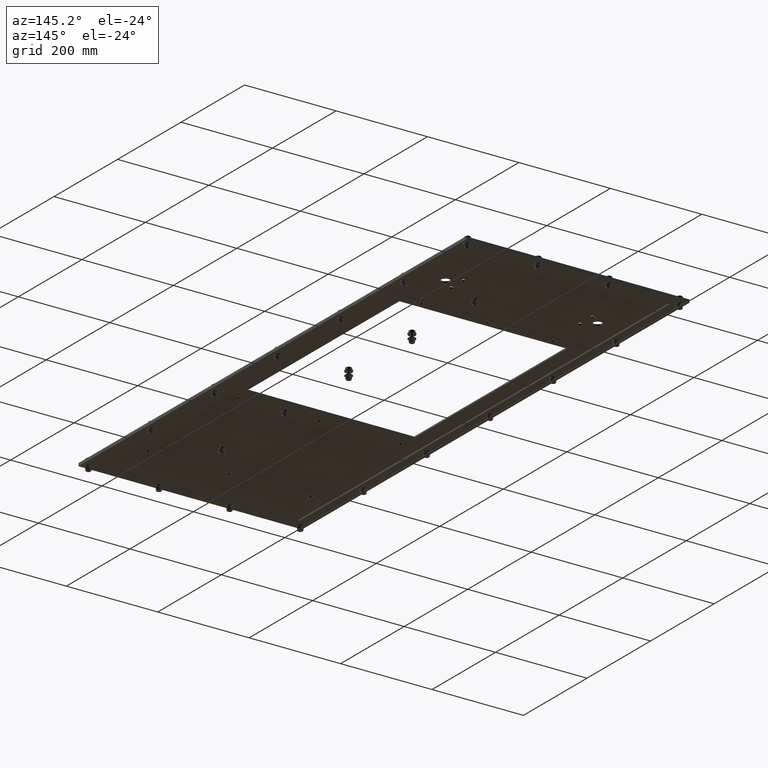
[diagram: clean part render]
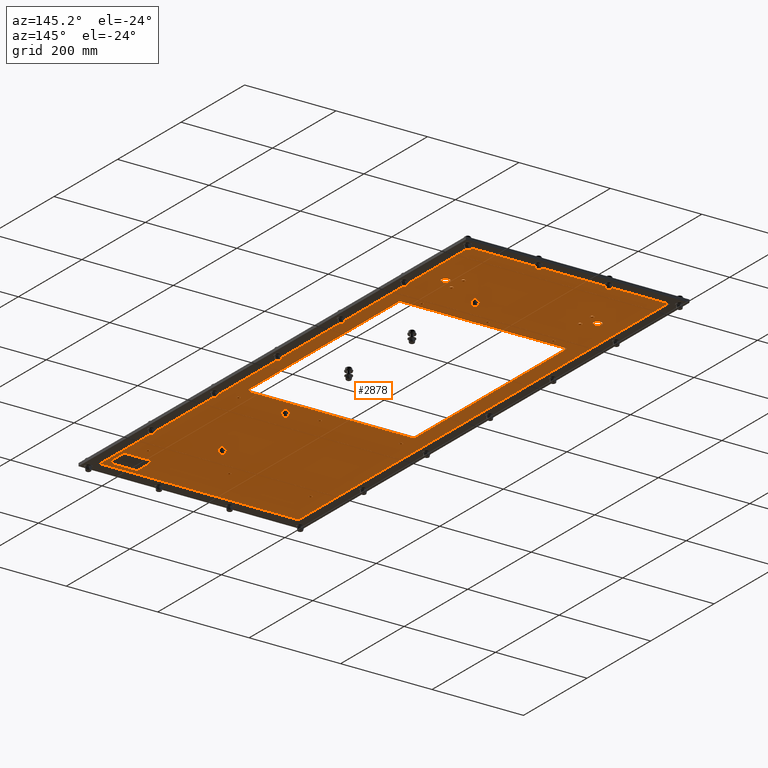
[diagram: same view with one face highlighted and labeled with its STEP entity id]
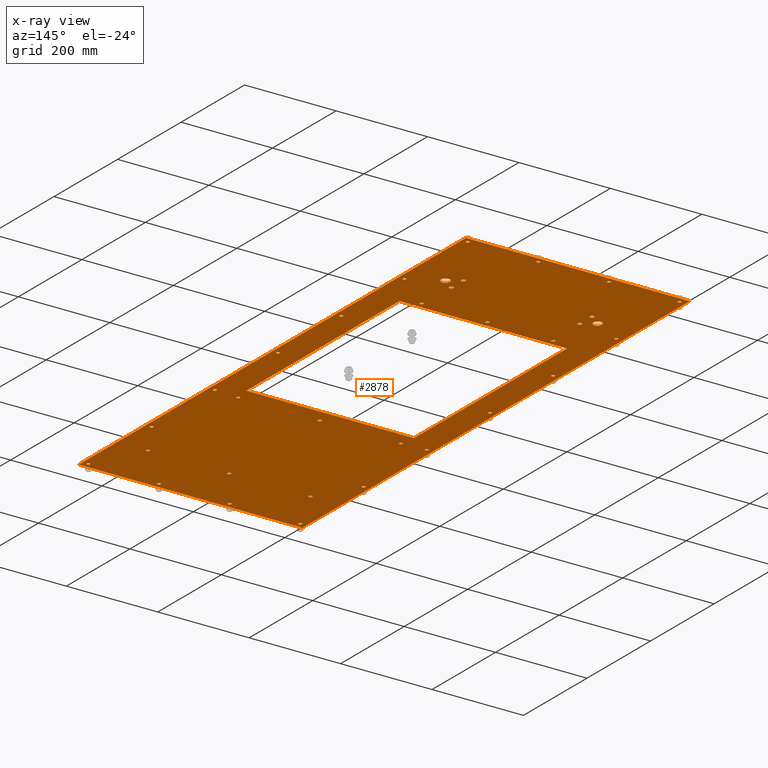
[diagram: x-ray of the same camera — body ghosted, the highlighted face saturated]
A machine part, auxiliary view. The second image highlights one B-rep face of the part: STEP entity #2878.
The next image is the same camera in x-ray: the body ghosted, the highlighted face saturated — about 0% of this face is hidden behind the body in this view.
In plain terms, the highlighted planar face has unit normal (0, 0, 1).
Its self-contained STEP definition (entity closure, byte-faithful):
#260=FACE_BOUND('',#881,.T.);
#261=FACE_BOUND('',#882,.T.);
#262=FACE_BOUND('',#883,.T.);
#263=FACE_BOUND('',#884,.T.);
#264=FACE_BOUND('',#885,.T.);
#265=FACE_BOUND('',#886,.T.);
#266=FACE_BOUND('',#887,.T.);
#267=FACE_BOUND('',#888,.T.);
#268=FACE_BOUND('',#889,.T.);
#269=FACE_BOUND('',#890,.T.);
#270=FACE_BOUND('',#891,.T.);
#271=FACE_BOUND('',#892,.T.);
#272=FACE_BOUND('',#893,.T.);
#273=FACE_BOUND('',#894,.T.);
#274=FACE_BOUND('',#895,.T.);
#275=FACE_BOUND('',#896,.T.);
#276=FACE_BOUND('',#897,.T.);
#277=FACE_BOUND('',#898,.T.);
#278=FACE_BOUND('',#899,.T.);
#279=FACE_BOUND('',#900,.T.);
#280=FACE_BOUND('',#901,.T.);
#281=FACE_BOUND('',#902,.T.);
#282=FACE_BOUND('',#903,.T.);
#283=FACE_BOUND('',#904,.T.);
#284=FACE_BOUND('',#905,.T.);
#285=FACE_BOUND('',#906,.T.);
#286=FACE_BOUND('',#907,.T.);
#287=FACE_BOUND('',#908,.T.);
#288=FACE_BOUND('',#909,.T.);
#289=FACE_BOUND('',#910,.T.);
#290=FACE_BOUND('',#911,.T.);
#291=FACE_BOUND('',#912,.T.);
#292=FACE_BOUND('',#913,.T.);
#293=FACE_BOUND('',#914,.T.);
#382=CIRCLE('',#3009,0.375);
#384=CIRCLE('',#3012,0.375);
#386=CIRCLE('',#3015,0.187499999999999);
#388=CIRCLE('',#3018,0.187499999999999);
#390=CIRCLE('',#3021,0.187499999999999);
#392=CIRCLE('',#3024,0.187499999999999);
#394=CIRCLE('',#3027,0.156250000000001);
#396=CIRCLE('',#3030,0.156250000000001);
#398=CIRCLE('',#3033,0.156250000000001);
#400=CIRCLE('',#3036,0.156249999999999);
#402=CIRCLE('',#3039,0.156249999999999);
#404=CIRCLE('',#3042,0.156249999999999);
#406=CIRCLE('',#3045,0.156249999999999);
#408=CIRCLE('',#3048,0.156249999999999);
#410=CIRCLE('',#3051,0.156249999999999);
#413=CIRCLE('',#3055,0.140625);
#415=CIRCLE('',#3058,0.140625);
#417=CIRCLE('',#3061,0.140625);
#419=CIRCLE('',#3064,0.140625);
#421=CIRCLE('',#3067,0.140625);
#423=CIRCLE('',#3070,0.140625);
#425=CIRCLE('',#3073,0.140625);
#427=CIRCLE('',#3076,0.140625);
#429=CIRCLE('',#3079,0.140625);
#431=CIRCLE('',#3082,0.140625);
#433=CIRCLE('',#3085,0.140625);
#435=CIRCLE('',#3088,0.140625);
#437=CIRCLE('',#3091,0.140625);
#439=CIRCLE('',#3094,0.140625);
#441=CIRCLE('',#3097,0.140625);
#443=CIRCLE('',#3100,0.140625);
#445=CIRCLE('',#3103,0.140625);
#447=CIRCLE('',#3106,0.140625);
#653=FACE_OUTER_BOUND('',#880,.T.);
#880=EDGE_LOOP('',(#2126,#2127,#2128,#2129));
#881=EDGE_LOOP('',(#2130,#2131,#2132,#2133));
#882=EDGE_LOOP('',(#2134));
#883=EDGE_LOOP('',(#2135));
#884=EDGE_LOOP('',(#2136));
#885=EDGE_LOOP('',(#2137));
#886=EDGE_LOOP('',(#2138));
#887=EDGE_LOOP('',(#2139));
#888=EDGE_LOOP('',(#2140));
#889=EDGE_LOOP('',(#2141));
#890=EDGE_LOOP('',(#2142));
#891=EDGE_LOOP('',(#2143));
#892=EDGE_LOOP('',(#2144));
#893=EDGE_LOOP('',(#2145));
#894=EDGE_LOOP('',(#2146));
#895=EDGE_LOOP('',(#2147));
#896=EDGE_LOOP('',(#2148));
#897=EDGE_LOOP('',(#2149));
#898=EDGE_LOOP('',(#2150));
#899=EDGE_LOOP('',(#2151));
#900=EDGE_LOOP('',(#2152));
#901=EDGE_LOOP('',(#2153));
#902=EDGE_LOOP('',(#2154));
#903=EDGE_LOOP('',(#2155));
#904=EDGE_LOOP('',(#2156));
#905=EDGE_LOOP('',(#2157));
#906=EDGE_LOOP('',(#2158));
#907=EDGE_LOOP('',(#2159));
#908=EDGE_LOOP('',(#2160));
#909=EDGE_LOOP('',(#2161));
#910=EDGE_LOOP('',(#2162));
#911=EDGE_LOOP('',(#2163));
#912=EDGE_LOOP('',(#2164));
#913=EDGE_LOOP('',(#2165));
#914=EDGE_LOOP('',(#2166));
#1120=LINE('',#4219,#1261);
#1124=LINE('',#4227,#1265);
#1127=LINE('',#4233,#1268);
#1130=LINE('',#4238,#1271);
#1134=LINE('',#4412,#1275);
#1138=LINE('',#4419,#1279);
#1141=LINE('',#4425,#1282);
#1143=LINE('',#4428,#1284);
#1261=VECTOR('',#3364,18.96);
#1265=VECTOR('',#3370,14.44);
#1268=VECTOR('',#3375,18.96);
#1271=VECTOR('',#3380,14.44);
#1275=VECTOR('',#3584,48.);
#1279=VECTOR('',#3590,19.25);
#1282=VECTOR('',#3595,48.);
#1284=VECTOR('',#3599,19.25);
#1402=VERTEX_POINT('',#4217);
#1403=VERTEX_POINT('',#4218);
#1406=VERTEX_POINT('',#4226);
#1408=VERTEX_POINT('',#4232);
#1410=VERTEX_POINT('',#4241);
#1412=VERTEX_POINT('',#4246);
#1414=VERTEX_POINT('',#4251);
#1416=VERTEX_POINT('',#4256);
#1418=VERTEX_POINT('',#4261);
#1420=VERTEX_POINT('',#4266);
#1422=VERTEX_POINT('',#4271);
#1424=VERTEX_POINT('',#4276);
#1426=VERTEX_POINT('',#4281);
#1428=VERTEX_POINT('',#4286);
#1430=VERTEX_POINT('',#4291);
#1432=VERTEX_POINT('',#4296);
#1434=VERTEX_POINT('',#4301);
#1436=VERTEX_POINT('',#4306);
#1438=VERTEX_POINT('',#4311);
#1441=VERTEX_POINT('',#4318);
#1443=VERTEX_POINT('',#4323);
#1445=VERTEX_POINT('',#4328);
#1447=VERTEX_POINT('',#4333);
#1449=VERTEX_POINT('',#4338);
#1451=VERTEX_POINT('',#4343);
#1453=VERTEX_POINT('',#4348);
#1455=VERTEX_POINT('',#4353);
#1457=VERTEX_POINT('',#4358);
#1459=VERTEX_POINT('',#4363);
#1461=VERTEX_POINT('',#4368);
#1463=VERTEX_POINT('',#4373);
#1465=VERTEX_POINT('',#4378);
#1467=VERTEX_POINT('',#4383);
#1469=VERTEX_POINT('',#4388);
#1471=VERTEX_POINT('',#4393);
#1473=VERTEX_POINT('',#4398);
#1475=VERTEX_POINT('',#4403);
#1478=VERTEX_POINT('',#4409);
#1479=VERTEX_POINT('',#4411);
#1481=VERTEX_POINT('',#4417);
#1483=VERTEX_POINT('',#4423);
#1660=EDGE_CURVE('',#1402,#1403,#1120,.T.);
#1664=EDGE_CURVE('',#1403,#1406,#1124,.T.);
#1667=EDGE_CURVE('',#1406,#1408,#1127,.T.);
#1670=EDGE_CURVE('',#1408,#1402,#1130,.T.);
#1672=EDGE_CURVE('',#1410,#1410,#382,.T.);
#1674=EDGE_CURVE('',#1412,#1412,#384,.T.);
#1676=EDGE_CURVE('',#1414,#1414,#386,.T.);
#1678=EDGE_CURVE('',#1416,#1416,#388,.T.);
#1680=EDGE_CURVE('',#1418,#1418,#390,.T.);
#1682=EDGE_CURVE('',#1420,#1420,#392,.T.);
#1684=EDGE_CURVE('',#1422,#1422,#394,.T.);
#1686=EDGE_CURVE('',#1424,#1424,#396,.T.);
#1688=EDGE_CURVE('',#1426,#1426,#398,.T.);
#1690=EDGE_CURVE('',#1428,#1428,#400,.T.);
#1692=EDGE_CURVE('',#1430,#1430,#402,.T.);
#1694=EDGE_CURVE('',#1432,#1432,#404,.T.);
#1696=EDGE_CURVE('',#1434,#1434,#406,.T.);
#1698=EDGE_CURVE('',#1436,#1436,#408,.T.);
#1700=EDGE_CURVE('',#1438,#1438,#410,.T.);
#1703=EDGE_CURVE('',#1441,#1441,#413,.T.);
#1705=EDGE_CURVE('',#1443,#1443,#415,.T.);
#1707=EDGE_CURVE('',#1445,#1445,#417,.T.);
#1709=EDGE_CURVE('',#1447,#1447,#419,.T.);
#1711=EDGE_CURVE('',#1449,#1449,#421,.T.);
#1713=EDGE_CURVE('',#1451,#1451,#423,.T.);
#1715=EDGE_CURVE('',#1453,#1453,#425,.T.);
#1717=EDGE_CURVE('',#1455,#1455,#427,.T.);
#1719=EDGE_CURVE('',#1457,#1457,#429,.T.);
#1721=EDGE_CURVE('',#1459,#1459,#431,.T.);
#1723=EDGE_CURVE('',#1461,#1461,#433,.T.);
#1725=EDGE_CURVE('',#1463,#1463,#435,.T.);
#1727=EDGE_CURVE('',#1465,#1465,#437,.T.);
#1729=EDGE_CURVE('',#1467,#1467,#439,.T.);
#1731=EDGE_CURVE('',#1469,#1469,#441,.T.);
#1733=EDGE_CURVE('',#1471,#1471,#443,.T.);
#1735=EDGE_CURVE('',#1473,#1473,#445,.T.);
#1737=EDGE_CURVE('',#1475,#1475,#447,.T.);
#1740=EDGE_CURVE('',#1479,#1478,#1134,.T.);
#1744=EDGE_CURVE('',#1478,#1481,#1138,.T.);
#1747=EDGE_CURVE('',#1481,#1483,#1141,.T.);
#1749=EDGE_CURVE('',#1483,#1479,#1143,.T.);
#2126=ORIENTED_EDGE('',*,*,#1749,.T.);
#2127=ORIENTED_EDGE('',*,*,#1740,.T.);
#2128=ORIENTED_EDGE('',*,*,#1744,.T.);
#2129=ORIENTED_EDGE('',*,*,#1747,.T.);
#2130=ORIENTED_EDGE('',*,*,#1660,.T.);
#2131=ORIENTED_EDGE('',*,*,#1664,.T.);
#2132=ORIENTED_EDGE('',*,*,#1667,.T.);
#2133=ORIENTED_EDGE('',*,*,#1670,.T.);
#2134=ORIENTED_EDGE('',*,*,#1672,.T.);
#2135=ORIENTED_EDGE('',*,*,#1674,.T.);
#2136=ORIENTED_EDGE('',*,*,#1676,.T.);
#2137=ORIENTED_EDGE('',*,*,#1678,.T.);
#2138=ORIENTED_EDGE('',*,*,#1680,.T.);
#2139=ORIENTED_EDGE('',*,*,#1682,.T.);
#2140=ORIENTED_EDGE('',*,*,#1684,.T.);
#2141=ORIENTED_EDGE('',*,*,#1686,.T.);
#2142=ORIENTED_EDGE('',*,*,#1688,.T.);
#2143=ORIENTED_EDGE('',*,*,#1690,.T.);
#2144=ORIENTED_EDGE('',*,*,#1692,.T.);
#2145=ORIENTED_EDGE('',*,*,#1694,.T.);
#2146=ORIENTED_EDGE('',*,*,#1696,.T.);
#2147=ORIENTED_EDGE('',*,*,#1698,.T.);
#2148=ORIENTED_EDGE('',*,*,#1700,.T.);
#2149=ORIENTED_EDGE('',*,*,#1703,.T.);
#2150=ORIENTED_EDGE('',*,*,#1705,.T.);
#2151=ORIENTED_EDGE('',*,*,#1707,.T.);
#2152=ORIENTED_EDGE('',*,*,#1709,.T.);
#2153=ORIENTED_EDGE('',*,*,#1711,.T.);
#2154=ORIENTED_EDGE('',*,*,#1713,.T.);
#2155=ORIENTED_EDGE('',*,*,#1715,.T.);
#2156=ORIENTED_EDGE('',*,*,#1717,.T.);
#2157=ORIENTED_EDGE('',*,*,#1719,.T.);
#2158=ORIENTED_EDGE('',*,*,#1721,.T.);
#2159=ORIENTED_EDGE('',*,*,#1723,.T.);
#2160=ORIENTED_EDGE('',*,*,#1725,.T.);
#2161=ORIENTED_EDGE('',*,*,#1727,.T.);
#2162=ORIENTED_EDGE('',*,*,#1729,.T.);
#2163=ORIENTED_EDGE('',*,*,#1731,.T.);
#2164=ORIENTED_EDGE('',*,*,#1733,.T.);
#2165=ORIENTED_EDGE('',*,*,#1735,.T.);
#2166=ORIENTED_EDGE('',*,*,#1737,.T.);
#2650=PLANE('',#3112);
#2878=ADVANCED_FACE('',(#653,#260,#261,#262,#263,#264,#265,#266,#267,#268,
#269,#270,#271,#272,#273,#274,#275,#276,#277,#278,#279,#280,#281,#282,#283,
#284,#285,#286,#287,#288,#289,#290,#291,#292,#293),#2650,.F.);
#3009=AXIS2_PLACEMENT_3D('',#4242,#3384,#3385);
#3012=AXIS2_PLACEMENT_3D('',#4247,#3390,#3391);
#3015=AXIS2_PLACEMENT_3D('',#4252,#3396,#3397);
#3018=AXIS2_PLACEMENT_3D('',#4257,#3402,#3403);
#3021=AXIS2_PLACEMENT_3D('',#4262,#3408,#3409);
#3024=AXIS2_PLACEMENT_3D('',#4267,#3414,#3415);
#3027=AXIS2_PLACEMENT_3D('',#4272,#3420,#3421);
#3030=AXIS2_PLACEMENT_3D('',#4277,#3426,#3427);
#3033=AXIS2_PLACEMENT_3D('',#4282,#3432,#3433);
#3036=AXIS2_PLACEMENT_3D('',#4287,#3438,#3439);
#3039=AXIS2_PLACEMENT_3D('',#4292,#3444,#3445);
#3042=AXIS2_PLACEMENT_3D('',#4297,#3450,#3451);
#3045=AXIS2_PLACEMENT_3D('',#4302,#3456,#3457);
#3048=AXIS2_PLACEMENT_3D('',#4307,#3462,#3463);
#3051=AXIS2_PLACEMENT_3D('',#4312,#3468,#3469);
#3055=AXIS2_PLACEMENT_3D('',#4319,#3476,#3477);
#3058=AXIS2_PLACEMENT_3D('',#4324,#3482,#3483);
#3061=AXIS2_PLACEMENT_3D('',#4329,#3488,#3489);
#3064=AXIS2_PLACEMENT_3D('',#4334,#3494,#3495);
#3067=AXIS2_PLACEMENT_3D('',#4339,#3500,#3501);
#3070=AXIS2_PLACEMENT_3D('',#4344,#3506,#3507);
#3073=AXIS2_PLACEMENT_3D('',#4349,#3512,#3513);
#3076=AXIS2_PLACEMENT_3D('',#4354,#3518,#3519);
#3079=AXIS2_PLACEMENT_3D('',#4359,#3524,#3525);
#3082=AXIS2_PLACEMENT_3D('',#4364,#3530,#3531);
#3085=AXIS2_PLACEMENT_3D('',#4369,#3536,#3537);
#3088=AXIS2_PLACEMENT_3D('',#4374,#3542,#3543);
#3091=AXIS2_PLACEMENT_3D('',#4379,#3548,#3549);
#3094=AXIS2_PLACEMENT_3D('',#4384,#3554,#3555);
#3097=AXIS2_PLACEMENT_3D('',#4389,#3560,#3561);
#3100=AXIS2_PLACEMENT_3D('',#4394,#3566,#3567);
#3103=AXIS2_PLACEMENT_3D('',#4399,#3572,#3573);
#3106=AXIS2_PLACEMENT_3D('',#4404,#3578,#3579);
#3112=AXIS2_PLACEMENT_3D('',#4430,#3602,#3603);
#3364=DIRECTION('',(1.47542845227437E-16,-1.,0.));
#3370=DIRECTION('',(1.,0.,0.));
#3375=DIRECTION('',(-7.37714226137185E-17,1.,0.));
#3380=DIRECTION('',(-1.,0.,0.));
#3384=DIRECTION('center_axis',(0.,0.,1.));
#3385=DIRECTION('ref_axis',(-1.,0.,0.));
#3390=DIRECTION('center_axis',(0.,0.,1.));
#3391=DIRECTION('ref_axis',(-1.,0.,0.));
#3396=DIRECTION('center_axis',(0.,0.,1.));
#3397=DIRECTION('ref_axis',(-1.,0.,0.));
#3402=DIRECTION('center_axis',(0.,0.,1.));
#3403=DIRECTION('ref_axis',(-1.,0.,0.));
#3408=DIRECTION('center_axis',(0.,0.,1.));
#3409=DIRECTION('ref_axis',(-1.,0.,0.));
#3414=DIRECTION('center_axis',(0.,0.,1.));
#3415=DIRECTION('ref_axis',(-1.,0.,0.));
#3420=DIRECTION('center_axis',(0.,0.,1.));
#3421=DIRECTION('ref_axis',(-1.,0.,0.));
#3426=DIRECTION('center_axis',(0.,0.,1.));
#3427=DIRECTION('ref_axis',(-1.,0.,0.));
#3432=DIRECTION('center_axis',(0.,0.,1.));
#3433=DIRECTION('ref_axis',(-1.,0.,0.));
#3438=DIRECTION('center_axis',(0.,0.,1.));
#3439=DIRECTION('ref_axis',(-1.,0.,0.));
#3444=DIRECTION('center_axis',(0.,0.,1.));
#3445=DIRECTION('ref_axis',(-1.,0.,0.));
#3450=DIRECTION('center_axis',(0.,0.,1.));
#3451=DIRECTION('ref_axis',(-1.,0.,0.));
#3456=DIRECTION('center_axis',(0.,0.,1.));
#3457=DIRECTION('ref_axis',(-1.,0.,0.));
#3462=DIRECTION('center_axis',(0.,0.,1.));
#3463=DIRECTION('ref_axis',(-1.,0.,0.));
#3468=DIRECTION('center_axis',(0.,0.,1.));
#3469=DIRECTION('ref_axis',(-1.,0.,0.));
#3476=DIRECTION('center_axis',(0.,0.,1.));
#3477=DIRECTION('ref_axis',(1.,0.,0.));
#3482=DIRECTION('center_axis',(0.,0.,1.));
#3483=DIRECTION('ref_axis',(1.,0.,0.));
#3488=DIRECTION('center_axis',(0.,0.,1.));
#3489=DIRECTION('ref_axis',(1.,0.,0.));
#3494=DIRECTION('center_axis',(0.,0.,1.));
#3495=DIRECTION('ref_axis',(1.,0.,0.));
#3500=DIRECTION('center_axis',(0.,0.,1.));
#3501=DIRECTION('ref_axis',(1.,0.,0.));
#3506=DIRECTION('center_axis',(0.,0.,1.));
#3507=DIRECTION('ref_axis',(1.,0.,0.));
#3512=DIRECTION('center_axis',(0.,0.,1.));
#3513=DIRECTION('ref_axis',(1.,0.,0.));
#3518=DIRECTION('center_axis',(0.,0.,1.));
#3519=DIRECTION('ref_axis',(1.,0.,0.));
#3524=DIRECTION('center_axis',(0.,0.,1.));
#3525=DIRECTION('ref_axis',(1.,0.,0.));
#3530=DIRECTION('center_axis',(0.,0.,1.));
#3531=DIRECTION('ref_axis',(1.,0.,0.));
#3536=DIRECTION('center_axis',(0.,0.,1.));
#3537=DIRECTION('ref_axis',(1.,0.,0.));
#3542=DIRECTION('center_axis',(0.,0.,1.));
#3543=DIRECTION('ref_axis',(1.,0.,0.));
#3548=DIRECTION('center_axis',(0.,0.,1.));
#3549=DIRECTION('ref_axis',(1.,0.,0.));
#3554=DIRECTION('center_axis',(0.,0.,1.));
#3555=DIRECTION('ref_axis',(1.,0.,0.));
#3560=DIRECTION('center_axis',(0.,0.,1.));
#3561=DIRECTION('ref_axis',(1.,0.,0.));
#3566=DIRECTION('center_axis',(0.,0.,1.));
#3567=DIRECTION('ref_axis',(1.,0.,0.));
#3572=DIRECTION('center_axis',(0.,0.,1.));
#3573=DIRECTION('ref_axis',(1.,0.,0.));
#3578=DIRECTION('center_axis',(0.,0.,1.));
#3579=DIRECTION('ref_axis',(1.,0.,0.));
#3584=DIRECTION('',(0.,-1.,0.));
#3590=DIRECTION('',(-1.,-1.4532012184479E-16,0.));
#3595=DIRECTION('',(-1.74838271594513E-16,1.,0.));
#3599=DIRECTION('',(1.,0.,0.));
#3602=DIRECTION('center_axis',(0.,0.,1.));
#3603=DIRECTION('ref_axis',(1.,0.,0.));
#4217=CARTESIAN_POINT('',(-7.235,12.275,-2.18547839493141E-17));
#4218=CARTESIAN_POINT('',(-7.235,-6.68499999999999,-2.18547839493141E-17));
#4219=CARTESIAN_POINT('',(-7.235,6.1375,0.));
#4226=CARTESIAN_POINT('',(7.205,-6.68499999999999,-2.18547839493141E-17));
#4227=CARTESIAN_POINT('',(-3.6175,-6.68499999999999,0.));
#4232=CARTESIAN_POINT('',(7.20499999999999,12.275,-2.18547839493141E-17));
#4233=CARTESIAN_POINT('',(7.205,-3.3425,0.));
#4238=CARTESIAN_POINT('',(3.6025,12.275,0.));
#4241=CARTESIAN_POINT('',(6.94000000000004,17.0650000000004,0.));
#4242=CARTESIAN_POINT('Origin',(6.56500000000004,17.0650000000004,0.));
#4246=CARTESIAN_POINT('',(-6.16,17.065,0.));
#4247=CARTESIAN_POINT('Origin',(-6.53500000000001,17.065,0.));
#4251=CARTESIAN_POINT('',(5.73250000000016,16.3149999999999,0.));
#4252=CARTESIAN_POINT('Origin',(5.54500000000016,16.3149999999999,0.));
#4256=CARTESIAN_POINT('',(5.73250000000001,17.8150000000002,0.));
#4257=CARTESIAN_POINT('Origin',(5.54500000000001,17.8150000000002,0.));
#4261=CARTESIAN_POINT('',(-5.34749999999984,16.3149999999999,0.));
#4262=CARTESIAN_POINT('Origin',(-5.53499999999983,16.3149999999999,0.));
#4266=CARTESIAN_POINT('',(-5.34750000000001,17.815,0.));
#4267=CARTESIAN_POINT('Origin',(-5.53500000000001,17.815,0.));
#4271=CARTESIAN_POINT('',(5.84125,12.835,0.));
#4272=CARTESIAN_POINT('Origin',(5.685,12.835,0.));
#4276=CARTESIAN_POINT('',(0.171249999999997,12.835,0.));
#4277=CARTESIAN_POINT('Origin',(0.0149999999999965,12.835,0.));
#4281=CARTESIAN_POINT('',(-5.49875,12.835,0.));
#4282=CARTESIAN_POINT('Origin',(-5.655,12.835,0.));
#4286=CARTESIAN_POINT('',(-6.84375,-7.9725,0.));
#4287=CARTESIAN_POINT('Origin',(-7.,-7.9725,0.));
#4291=CARTESIAN_POINT('',(0.15625,-7.9725,0.));
#4292=CARTESIAN_POINT('Origin',(6.99353086378051E-16,-7.9725,0.));
#4296=CARTESIAN_POINT('',(7.15625000000001,-7.97249999999999,0.));
#4297=CARTESIAN_POINT('Origin',(7.00000000000001,-7.97249999999999,0.));
#4301=CARTESIAN_POINT('',(-6.84375,-19.1825,0.));
#4302=CARTESIAN_POINT('Origin',(-7.,-19.1825,0.));
#4306=CARTESIAN_POINT('',(0.156250000000002,-19.1825,0.));
#4307=CARTESIAN_POINT('Origin',(2.79741234551221E-15,-19.1825,0.));
#4311=CARTESIAN_POINT('',(7.15625,-19.1825,0.));
#4312=CARTESIAN_POINT('Origin',(7.,-19.1825,0.));
#4318=CARTESIAN_POINT('',(9.265625,-23.5,0.));
#4319=CARTESIAN_POINT('Origin',(9.125,-23.5,0.));
#4323=CARTESIAN_POINT('',(3.18229166666667,-23.5,0.));
#4324=CARTESIAN_POINT('Origin',(3.04166666666667,-23.5,0.));
#4328=CARTESIAN_POINT('',(-2.90104166666666,-23.5,0.));
#4329=CARTESIAN_POINT('Origin',(-3.04166666666666,-23.5,0.));
#4333=CARTESIAN_POINT('',(-8.984375,-23.5,0.));
#4334=CARTESIAN_POINT('Origin',(-9.125,-23.5,0.));
#4338=CARTESIAN_POINT('',(9.265625,-15.6666666666667,0.));
#4339=CARTESIAN_POINT('Origin',(9.125,-15.6666666666667,0.));
#4343=CARTESIAN_POINT('',(-8.984375,-15.6666666666667,0.));
#4344=CARTESIAN_POINT('Origin',(-9.125,-15.6666666666667,0.));
#4348=CARTESIAN_POINT('',(9.265625,-7.83333333333333,0.));
#4349=CARTESIAN_POINT('Origin',(9.125,-7.83333333333333,0.));
#4353=CARTESIAN_POINT('',(-8.984375,-7.83333333333333,0.));
#4354=CARTESIAN_POINT('Origin',(-9.125,-7.83333333333333,0.));
#4358=CARTESIAN_POINT('',(9.265625,5.59482469102441E-15,0.));
#4359=CARTESIAN_POINT('Origin',(9.125,5.59482469102441E-15,0.));
#4363=CARTESIAN_POINT('',(-8.984375,5.59482469102441E-15,0.));
#4364=CARTESIAN_POINT('Origin',(-9.125,5.59482469102441E-15,0.));
#4368=CARTESIAN_POINT('',(9.265625,7.83333333333334,0.));
#4369=CARTESIAN_POINT('Origin',(9.125,7.83333333333334,0.));
#4373=CARTESIAN_POINT('',(-8.98437500000001,7.83333333333334,0.));
#4374=CARTESIAN_POINT('Origin',(-9.125,7.83333333333334,0.));
#4378=CARTESIAN_POINT('',(9.26562499999999,15.6666666666667,0.));
#4379=CARTESIAN_POINT('Origin',(9.12499999999999,15.6666666666667,0.));
#4383=CARTESIAN_POINT('',(-8.98437500000001,15.6666666666667,0.));
#4384=CARTESIAN_POINT('Origin',(-9.125,15.6666666666667,0.));
#4388=CARTESIAN_POINT('',(9.26562499999999,23.5,0.));
#4389=CARTESIAN_POINT('Origin',(9.12499999999999,23.5,0.));
#4393=CARTESIAN_POINT('',(3.18229166666666,23.5,0.));
#4394=CARTESIAN_POINT('Origin',(3.04166666666666,23.5,0.));
#4398=CARTESIAN_POINT('',(-2.90104166666667,23.5,0.));
#4399=CARTESIAN_POINT('Origin',(-3.04166666666667,23.5,0.));
#4403=CARTESIAN_POINT('',(-8.98437500000001,23.5,0.));
#4404=CARTESIAN_POINT('Origin',(-9.12500000000001,23.5,0.));
#4409=CARTESIAN_POINT('',(9.625,-24.,0.));
#4411=CARTESIAN_POINT('',(9.625,24.,0.));
#4412=CARTESIAN_POINT('',(9.625,24.,0.));
#4417=CARTESIAN_POINT('',(-9.625,-24.,0.));
#4419=CARTESIAN_POINT('',(9.625,-24.,0.));
#4423=CARTESIAN_POINT('',(-9.625,24.,0.));
#4425=CARTESIAN_POINT('',(-9.625,-24.,0.));
#4428=CARTESIAN_POINT('',(-9.625,24.,0.));
#4430=CARTESIAN_POINT('Origin',(-2.09805925913415E-15,1.3987061727561E-15,
0.));